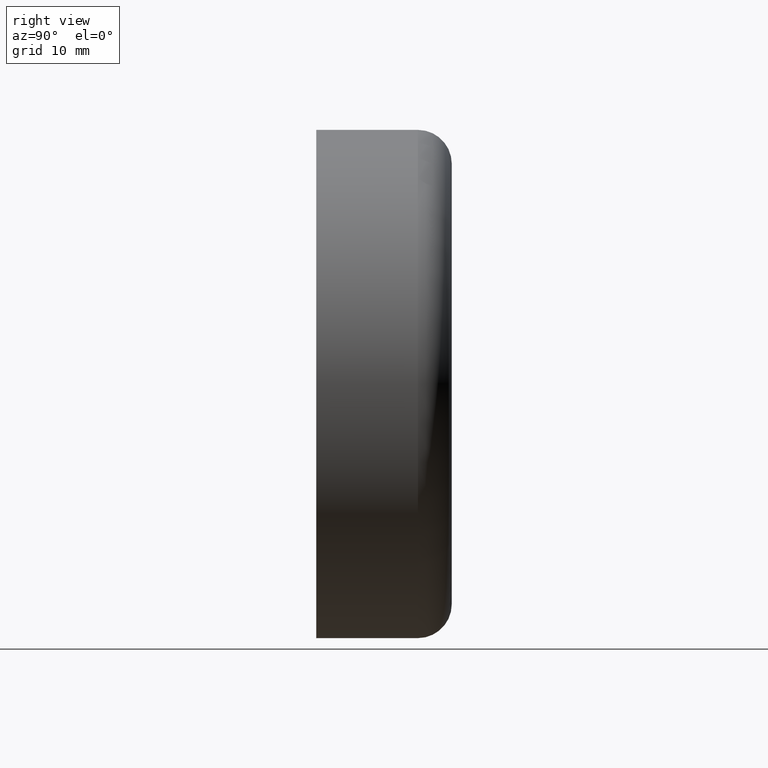
[diagram: clean part render]
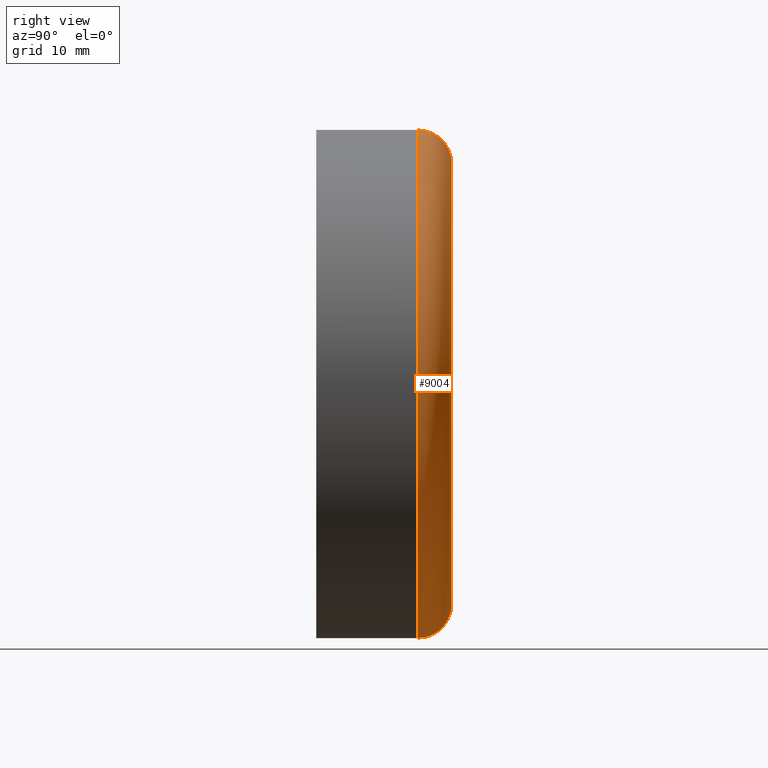
[diagram: same view with one face highlighted and labeled with its STEP entity id]
A machine part, right view. The second image highlights one B-rep face of the part: STEP entity #9004.
In plain terms, the highlighted toroidal blend (fillet) surface has major radius 19.5 mm and minor (blend) radius 3 mm.
Its self-contained STEP definition (entity closure, byte-faithful):
#289 = EDGE_CURVE ( 'NONE', #3229, #16257, #10585, .T. ) ;
#308 = TOROIDAL_SURFACE ( 'NONE', #4526, 19.50000000000000355, 2.999999999999997335 ) ;
#665 = DIRECTION ( 'NONE',  ( -0.000000000000000000, -1.000000000000000000, -0.000000000000000000 ) ) ;
#1127 = DIRECTION ( 'NONE',  ( -1.224646799147353700E-16, 0.000000000000000000, -1.000000000000000000 ) ) ;
#1199 = AXIS2_PLACEMENT_3D ( 'NONE', #3213, #4369, #5829 ) ;
#1208 = EDGE_CURVE ( 'NONE', #3229, #4532, #13679, .T. ) ;
#1257 = CARTESIAN_POINT ( 'NONE',  ( 0.000000000000000000, 12.00000000000000000, -19.50000000000000355 ) ) ;
#1926 = ORIENTED_EDGE ( 'NONE', *, *, #3442, .F. ) ;
#2009 = EDGE_LOOP ( 'NONE', ( #9196, #4259, #1926, #3809 ) ) ;
#2066 = DIRECTION ( 'NONE',  ( -1.000000000000000000, 0.000000000000000000, 0.000000000000000000 ) ) ;
#2831 = DIRECTION ( 'NONE',  ( 0.000000000000000000, 0.000000000000000000, -1.000000000000000000 ) ) ;
#2884 = CARTESIAN_POINT ( 'NONE',  ( 0.000000000000000000, 9.000000000000001776, 0.000000000000000000 ) ) ;
#3213 = CARTESIAN_POINT ( 'NONE',  ( 0.000000000000000000, 12.00000000000000000, 0.000000000000000000 ) ) ;
#3229 = VERTEX_POINT ( 'NONE', #1257 ) ;
#3442 = EDGE_CURVE ( 'NONE', #16257, #12911, #11794, .T. ) ;
#3809 = ORIENTED_EDGE ( 'NONE', *, *, #289, .F. ) ;
#4259 = ORIENTED_EDGE ( 'NONE', *, *, #9306, .T. ) ;
#4369 = DIRECTION ( 'NONE',  ( -0.000000000000000000, -1.000000000000000000, -0.000000000000000000 ) ) ;
#4526 = AXIS2_PLACEMENT_3D ( 'NONE', #12135, #665, #11241 ) ;
#4532 = VERTEX_POINT ( 'NONE', #13323 ) ;
#5829 = DIRECTION ( 'NONE',  ( 0.000000000000000000, 0.000000000000000000, -1.000000000000000000 ) ) ;
#7726 = CARTESIAN_POINT ( 'NONE',  ( 2.388061258337339333E-15, 9.000000000000001776, 19.50000000000000355 ) ) ;
#7828 = AXIS2_PLACEMENT_3D ( 'NONE', #15298, #2066, #8535 ) ;
#8535 = DIRECTION ( 'NONE',  ( 0.000000000000000000, 0.000000000000000000, 1.000000000000000000 ) ) ;
#8908 = CARTESIAN_POINT ( 'NONE',  ( 2.755455298081544778E-15, 9.000000000000001776, 22.50000000000000000 ) ) ;
#9004 = ADVANCED_FACE ( 'NONE', ( #12535 ), #308, .T. ) ;
#9031 = DIRECTION ( 'NONE',  ( 1.000000000000000000, 0.000000000000000000, -1.224646799147353207E-16 ) ) ;
#9196 = ORIENTED_EDGE ( 'NONE', *, *, #1208, .T. ) ;
#9306 = EDGE_CURVE ( 'NONE', #4532, #12911, #16010, .T. ) ;
#10301 = CARTESIAN_POINT ( 'NONE',  ( 0.000000000000000000, 9.000000000000001776, -22.50000000000000000 ) ) ;
#10585 = CIRCLE ( 'NONE', #7828, 2.999999999999995559 ) ;
#10863 = DIRECTION ( 'NONE',  ( -0.000000000000000000, -1.000000000000000000, -0.000000000000000000 ) ) ;
#11241 = DIRECTION ( 'NONE',  ( 0.000000000000000000, 0.000000000000000000, -1.000000000000000000 ) ) ;
#11794 = CIRCLE ( 'NONE', #15932, 22.50000000000000000 ) ;
#12135 = CARTESIAN_POINT ( 'NONE',  ( 0.000000000000000000, 9.000000000000001776, 0.000000000000000000 ) ) ;
#12535 = FACE_OUTER_BOUND ( 'NONE', #2009, .T. ) ;
#12911 = VERTEX_POINT ( 'NONE', #8908 ) ;
#13323 = CARTESIAN_POINT ( 'NONE',  ( 2.571758278209442056E-15, 12.00000000000000000, 19.50000000000000355 ) ) ;
#13679 = CIRCLE ( 'NONE', #1199, 19.50000000000000355 ) ;
#15263 = AXIS2_PLACEMENT_3D ( 'NONE', #7726, #9031, #1127 ) ;
#15298 = CARTESIAN_POINT ( 'NONE',  ( 0.000000000000000000, 9.000000000000001776, -19.50000000000000355 ) ) ;
#15932 = AXIS2_PLACEMENT_3D ( 'NONE', #2884, #10863, #2831 ) ;
#16010 = CIRCLE ( 'NONE', #15263, 2.999999999999995559 ) ;
#16257 = VERTEX_POINT ( 'NONE', #10301 ) ;